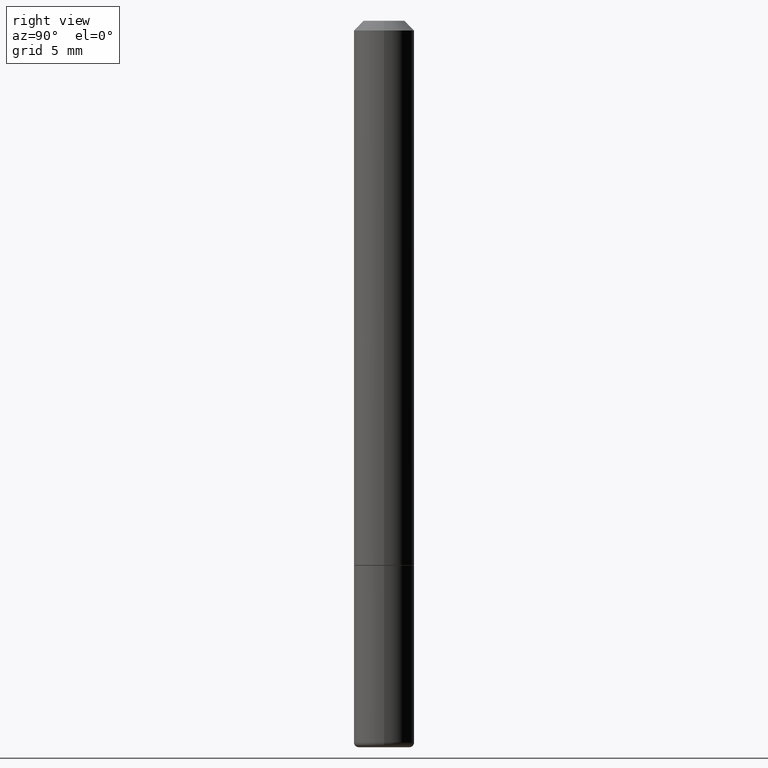
[diagram: clean part render]
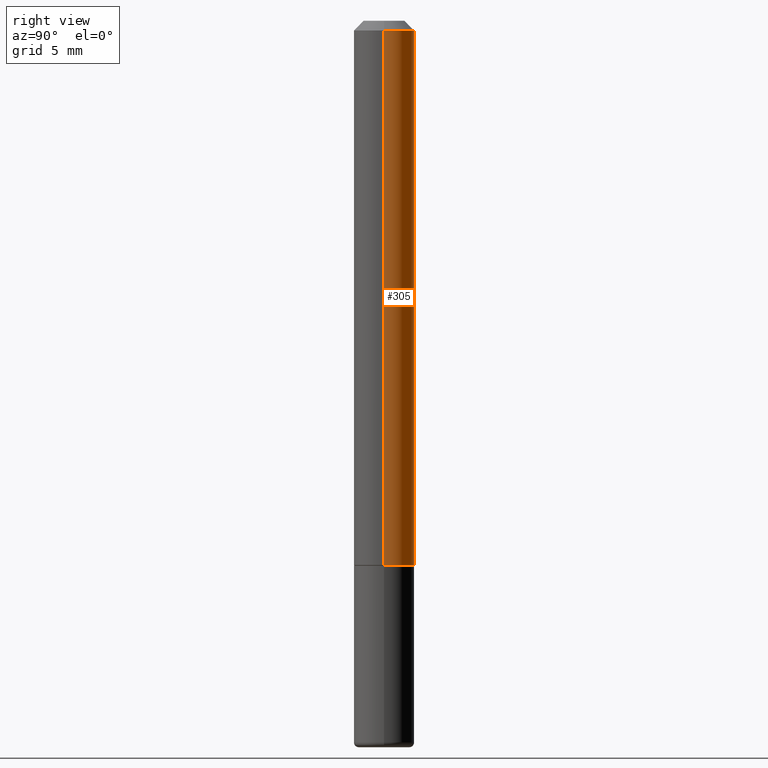
[diagram: same view with one face highlighted and labeled with its STEP entity id]
A machine part, right view. The second image highlights one B-rep face of the part: STEP entity #305.
In plain terms, the highlighted cylindrical surface (edge-blend (fillet) strip) has radius 1.5875 mm, axis along (-0, 0, 1).
Its self-contained STEP definition (entity closure, byte-faithful):
#7 = CARTESIAN_POINT ( 'NONE',  ( -0.06249999999999981265, 4.440892098500612850E-16, -3.074334431409306655E-30 ) ) ;
#16 = DIRECTION ( 'NONE',  ( -2.445468806185136597E-29, 3.491481338843145583E-15, 1.000000000000000000 ) ) ;
#17 = CARTESIAN_POINT ( 'NONE',  ( -0.06249999999999988204, -1.553038115968216353E-15, -1.124000000000000332 ) ) ;
#40 = VERTEX_POINT ( 'NONE', #17 ) ;
#65 = VECTOR ( 'NONE', #158, 39.37007874015748143 ) ;
#76 = LINE ( 'NONE', #122, #353 ) ;
#112 = CIRCLE ( 'NONE', #313, 0.06249999999999988204 ) ;
#121 = CARTESIAN_POINT ( 'NONE',  ( 4.890937612370289799E-31, -6.982962677686315028E-17, -0.02000000000000006981 ) ) ;
#122 = CARTESIAN_POINT ( 'NONE',  ( 0.06249999999999981265, -4.364351673553903382E-16, 3.047610484872450762E-30 ) ) ;
#143 = ORIENTED_EDGE ( 'NONE', *, *, #149, .F. ) ;
#149 = EDGE_CURVE ( 'NONE', #369, #375, #76, .T. ) ;
#158 = DIRECTION ( 'NONE',  ( -2.445468806185136877E-29, 3.491481338843145188E-15, 1.000000000000000000 ) ) ;
#169 = CARTESIAN_POINT ( 'NONE',  ( 0.06249999999999988204, -4.360860192215087886E-15, -1.124000000000000332 ) ) ;
#179 = FACE_OUTER_BOUND ( 'NONE', #453, .T. ) ;
#205 = EDGE_CURVE ( 'NONE', #375, #492, #457, .T. ) ;
#231 = CARTESIAN_POINT ( 'NONE',  ( 2.748706938152094189E-29, -3.924425024859697006E-15, -1.124000000000000332 ) ) ;
#248 = EDGE_CURVE ( 'NONE', #40, #492, #307, .T. ) ;
#269 = ORIENTED_EDGE ( 'NONE', *, *, #248, .T. ) ;
#277 = DIRECTION ( 'NONE',  ( -2.445468806185136597E-29, 3.491481338843145583E-15, 1.000000000000000000 ) ) ;
#294 = DIRECTION ( 'NONE',  ( -2.445468806185136597E-29, 3.491481338843145583E-15, 1.000000000000000000 ) ) ;
#305 = ADVANCED_FACE ( 'NONE', ( #179 ), #332, .T. ) ;
#307 = LINE ( 'NONE', #7, #65 ) ;
#313 = AXIS2_PLACEMENT_3D ( 'NONE', #231, #294, #490 ) ;
#332 = CYLINDRICAL_SURFACE ( 'NONE', #431, 0.06249999999999981265 ) ;
#353 = VECTOR ( 'NONE', #383, 39.37007874015748143 ) ;
#369 = VERTEX_POINT ( 'NONE', #169 ) ;
#372 = AXIS2_PLACEMENT_3D ( 'NONE', #121, #277, #423 ) ;
#375 = VERTEX_POINT ( 'NONE', #393 ) ;
#383 = DIRECTION ( 'NONE',  ( -2.445468806185136877E-29, 3.491481338843145188E-15, 1.000000000000000000 ) ) ;
#393 = CARTESIAN_POINT ( 'NONE',  ( 0.06249999999999974326, -4.986107516375821473E-16, -0.02000000000000006981 ) ) ;
#423 = DIRECTION ( 'NONE',  ( 1.000000000000000000, -6.982962677686265922E-15, 0.000000000000000000 ) ) ;
#431 = AXIS2_PLACEMENT_3D ( 'NONE', #485, #16, #436 ) ;
#436 = DIRECTION ( 'NONE',  ( 1.000000000000000000, -6.982962677686266711E-15, 4.876176775795935793E-29 ) ) ;
#444 = CARTESIAN_POINT ( 'NONE',  ( -0.06249999999999974326, 3.666055405785266949E-16, -0.02000000000000006981 ) ) ;
#451 = ORIENTED_EDGE ( 'NONE', *, *, #486, .T. ) ;
#453 = EDGE_LOOP ( 'NONE', ( #451, #269, #454, #143 ) ) ;
#454 = ORIENTED_EDGE ( 'NONE', *, *, #205, .F. ) ;
#457 = CIRCLE ( 'NONE', #372, 0.06249999999999974326 ) ;
#485 = CARTESIAN_POINT ( 'NONE',  ( 0.000000000000000000, 0.000000000000000000, 0.000000000000000000 ) ) ;
#486 = EDGE_CURVE ( 'NONE', #369, #40, #112, .T. ) ;
#490 = DIRECTION ( 'NONE',  ( 1.000000000000000000, -6.982962677686268288E-15, 0.000000000000000000 ) ) ;
#492 = VERTEX_POINT ( 'NONE', #444 ) ;